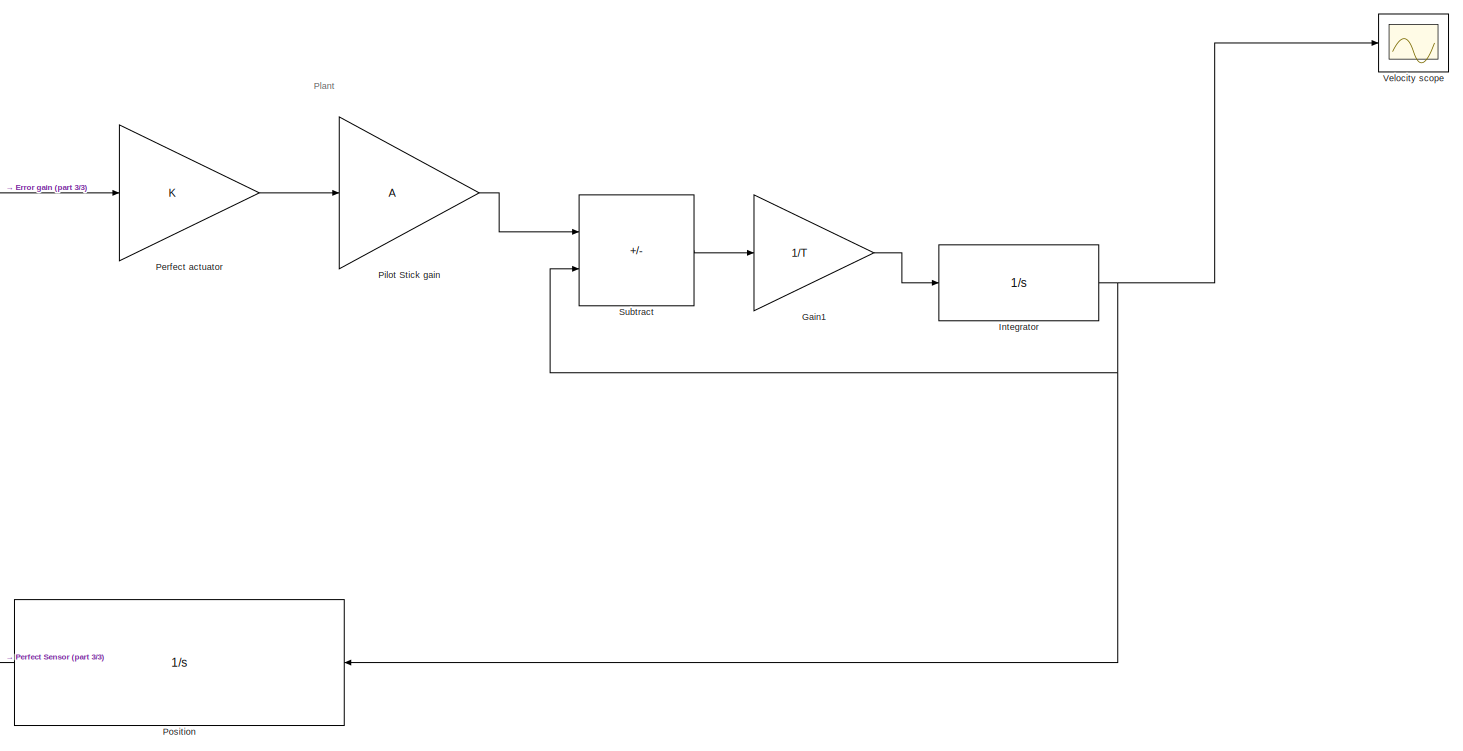
[diagram: root canvas - part 1/3, right side, full height]
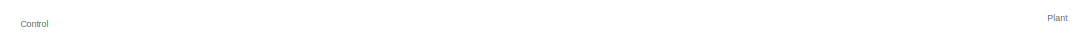
[diagram: root canvas - part 2/3, top center region]
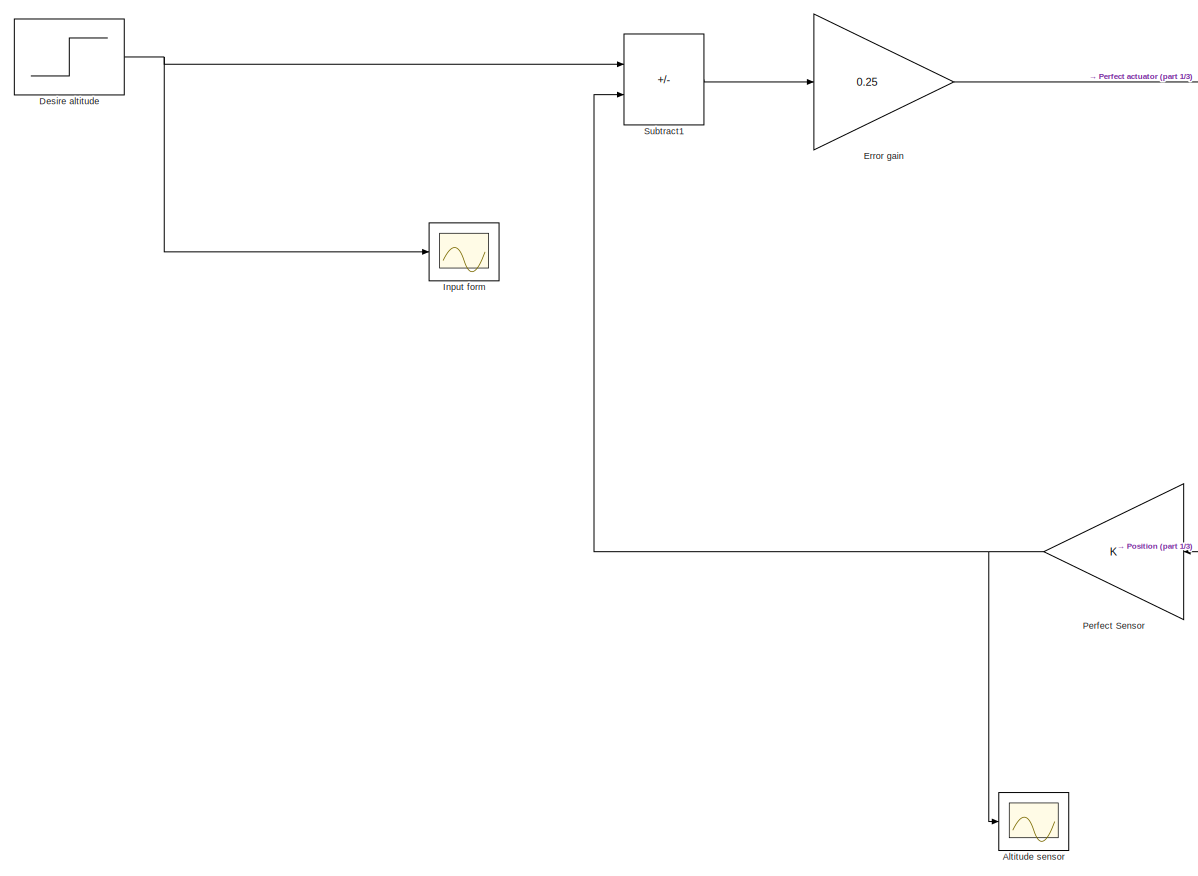
[diagram: root canvas - part 3/3, left side, full height]
MODEL slx_af368fd7f3e5
KIND model
CONFIG AbsTol = auto
CONFIG EnableMultiTasking = off
CONFIG FixedStep = 0.001
CONFIG MaxStep = auto
CONFIG MinStep = auto
CONFIG RelTol = 1e-3
CONFIG SampleTimeConstraint = Unconstrained
CONFIG Solver = ode3
CONFIG SolverName = ode3
CONFIG StartTime = 0.0
CONFIG StopTime = 40
WORKSPACE source: mxarray member
WORKSPACE C = 0.0001
WORKSPACE R = 1500
BLOCK [Integrator]  Position
  Ports = [1, 1]
BLOCK [Scope] Altitude sensor
  Floating = off
  NumInputPorts = 1
  Ports = [1]
  ScopeSpecificationString = Simulink.scopes.TimeScopeBlockCfg('CurrentConfiguration', extmgr.ConfigurationSet(extmgr.Configuration('Core','General UI',true),extmgr.Configuration('Core','Source UI',true),extmgr.Configuration('Sources','WiredSimulink',true,'DataLogging',true,'DataLoggingVariableName','ScopeData2'),extmgr.Configuration('Visuals','Time Domain',true,'SerializedDisplays',{struct('MinYLimReal','-2.42656','MaxYLimRe...<+1452ch>
BLOCK [Step] Desire altitude
  After = 13
  SampleTime = .05
BLOCK [Gain] Error gain
  Gain = 0.25
BLOCK [Gain] Gain1
  Gain = 1/T
BLOCK [Scope] Input form
  Floating = off
  NumInputPorts = 1
  Ports = [1]
  ScopeSpecificationString = Simulink.scopes.TimeScopeBlockCfg('CurrentConfiguration', extmgr.ConfigurationSet(extmgr.Configuration('Core','General UI',true),extmgr.Configuration('Core','Source UI',true),extmgr.Configuration('Sources','WiredSimulink',true,'DataLogging',true,'DataLoggingVariableName','ScopeData1'),extmgr.Configuration('Visuals','Time Domain',true,'SerializedDisplays',{struct('MinYLimReal','-1.625','MaxYLimReal...<+1415ch>
BLOCK [Integrator] Integrator
  Ports = [1, 1]
BLOCK [Gain] Perfect Sensor
BLOCK [Gain] Perfect actuator
BLOCK [Gain] Pilot Stick gain
  Gain = A
BLOCK [Sum] Subtract
  IconShape = rectangular
  Inputs = +-
  Ports = [2, 1]
BLOCK [Sum] Subtract1
  IconShape = rectangular
  Inputs = +-
  Ports = [2, 1]
BLOCK [Scope] Velocity scope
  Floating = off
  NumInputPorts = 1
  Ports = [1]
  ScopeSpecificationString = Simulink.scopes.TimeScopeBlockCfg('CurrentConfiguration', extmgr.ConfigurationSet(extmgr.Configuration('Core','General UI',true),extmgr.Configuration('Core','Source UI',true),extmgr.Configuration('Sources','WiredSimulink',true,'DataLogging',true),extmgr.Configuration('Visuals','Time Domain',true,'SerializedDisplays',{struct('MinYLimReal','-6.33642','MaxYLimReal','11.05874','YLabelReal','','MinYLim...<+1382ch>
ANNOTATION (root): Control
ANNOTATION (root): Plant
LINE  Position:1 -> Perfect Sensor:1
NET Desire altitude:1 -> Input form:1, Subtract1:1
LINE Error gain:1 -> Perfect actuator:1
LINE Gain1:1 -> Integrator:1
NET Integrator:1 ->  Position:1, Subtract:2, Velocity scope:1
NET Perfect Sensor:1 -> Altitude sensor:1, Subtract1:2
LINE Perfect actuator:1 -> Pilot Stick gain:1
LINE Pilot Stick gain:1 -> Subtract:1
LINE Subtract1:1 -> Error gain:1
LINE Subtract:1 -> Gain1:1
note: NET lines group one-source signal fan-out (src -> all destinations, sorted); 1:1 wires keep LINE
